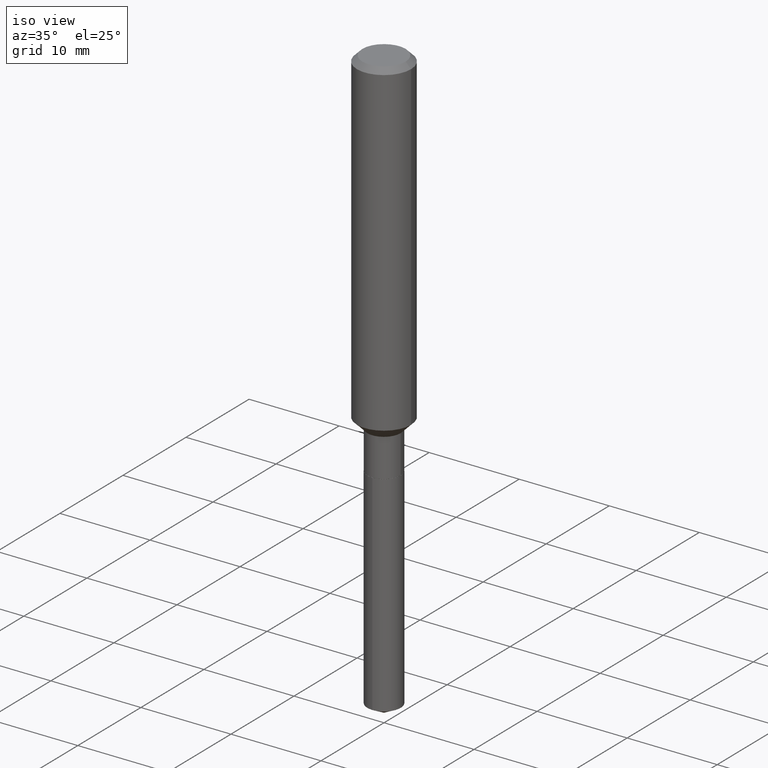
[diagram: clean part render]
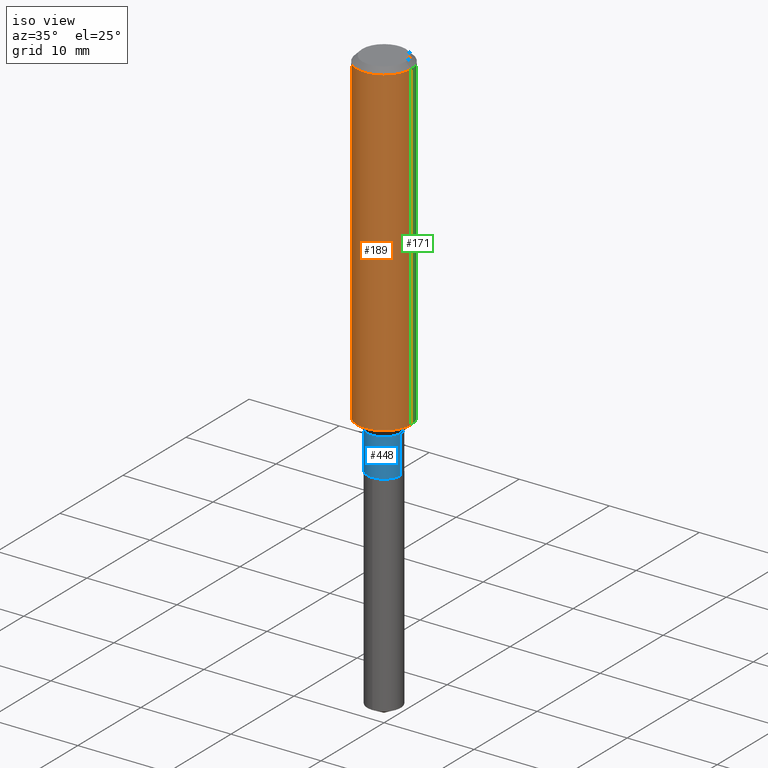
[diagram: same view with three faces highlighted in distinct colors, each labeled with its STEP entity id]
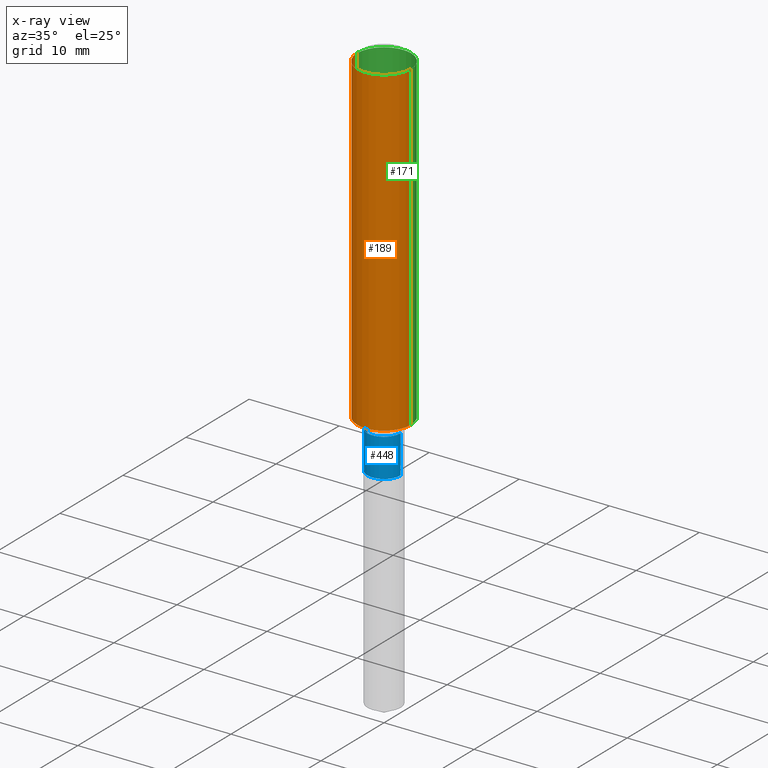
[diagram: x-ray of the same camera — body ghosted, the three highlighted faces saturated]
A machine part, iso view with three faces highlighted in distinct colors.
The next image is the same camera in x-ray (body ghosted, the three faces saturated) — at least one of them is partly hidden behind the body in this view.
Their STEP definitions:

[orange] entity #189 — the highlighted cylindrical surface (edge-blend (fillet) strip) has radius 2.9997 mm, axis along (-0, 0, 1).
#11 = VERTEX_POINT ( 'NONE', #195 ) ;
#53 = AXIS2_PLACEMENT_3D ( 'NONE', #201, #125, #163 ) ;
#57 = ORIENTED_EDGE ( 'NONE', *, *, #417, .T. ) ;
#59 = EDGE_LOOP ( 'NONE', ( #328, #57, #442, #396 ) ) ;
#64 = VECTOR ( 'NONE', #363, 39.37007874015748143 ) ;
#102 = CARTESIAN_POINT ( 'NONE',  ( 0.1181000000000000799, -8.246878922347486570E-16, 5.758764772215004644E-30 ) ) ;
#125 = DIRECTION ( 'NONE',  ( -2.445468806185136597E-29, 3.491481338843145583E-15, 1.000000000000000000 ) ) ;
#131 = VECTOR ( 'NONE', #425, 39.37007874015748143 ) ;
#133 = AXIS2_PLACEMENT_3D ( 'NONE', #434, #211, #239 ) ;
#134 = DIRECTION ( 'NONE',  ( 1.000000000000000000, -6.982962677686263555E-15, 0.000000000000000000 ) ) ;
#163 = DIRECTION ( 'NONE',  ( 1.000000000000000000, -6.982962677686266711E-15, 4.876176775795936353E-29 ) ) ;
#166 = CARTESIAN_POINT ( 'NONE',  ( -0.1180999999999999966, -1.696484979182072133E-15, -0.02362000000000014435 ) ) ;
#180 = EDGE_CURVE ( 'NONE', #446, #243, #236, .T. ) ;
#189 = ADVANCED_FACE ( 'NONE', ( #268 ), #230, .T. ) ;
#195 = CARTESIAN_POINT ( 'NONE',  ( 0.1181000000000001632, -5.813491003240776621E-15, -1.428849999999999731 ) ) ;
#201 = CARTESIAN_POINT ( 'NONE',  ( 0.000000000000000000, 0.000000000000000000, 0.000000000000000000 ) ) ;
#211 = DIRECTION ( 'NONE',  ( -2.445468806185136597E-29, 3.491481338843145583E-15, 1.000000000000000000 ) ) ;
#213 = LINE ( 'NONE', #102, #64 ) ;
#230 = CYLINDRICAL_SURFACE ( 'NONE', #53, 0.1181000000000000799 ) ;
#235 = CIRCLE ( 'NONE', #133, 0.1180999999999999966 ) ;
#236 = LINE ( 'NONE', #432, #131 ) ;
#239 = DIRECTION ( 'NONE',  ( 1.000000000000000000, -6.982962677686266711E-15, 0.000000000000000000 ) ) ;
#241 = VERTEX_POINT ( 'NONE', #310 ) ;
#243 = VERTEX_POINT ( 'NONE', #166 ) ;
#268 = FACE_OUTER_BOUND ( 'NONE', #59, .T. ) ;
#297 = AXIS2_PLACEMENT_3D ( 'NONE', #471, #356, #134 ) ;
#310 = CARTESIAN_POINT ( 'NONE',  ( 0.1180999999999999966, -9.071566814582237199E-16, -0.02362000000000014435 ) ) ;
#328 = ORIENTED_EDGE ( 'NONE', *, *, #180, .F. ) ;
#347 = CIRCLE ( 'NONE', #297, 0.1181000000000001632 ) ;
#356 = DIRECTION ( 'NONE',  ( -2.445468806185136597E-29, 3.491481338843145583E-15, 1.000000000000000000 ) ) ;
#363 = DIRECTION ( 'NONE',  ( -2.445468806185136877E-29, 3.491481338843145188E-15, 1.000000000000000000 ) ) ;
#396 = ORIENTED_EDGE ( 'NONE', *, *, #433, .F. ) ;
#399 = CARTESIAN_POINT ( 'NONE',  ( -0.1181000000000001632, -4.149652140073347794E-15, -1.428849999999999731 ) ) ;
#417 = EDGE_CURVE ( 'NONE', #446, #11, #347, .T. ) ;
#425 = DIRECTION ( 'NONE',  ( -2.445468806185136877E-29, 3.491481338843145188E-15, 1.000000000000000000 ) ) ;
#432 = CARTESIAN_POINT ( 'NONE',  ( -0.1181000000000000799, 8.391509709326788873E-16, -5.809262341591047988E-30 ) ) ;
#433 = EDGE_CURVE ( 'NONE', #243, #241, #235, .T. ) ;
#434 = CARTESIAN_POINT ( 'NONE',  ( 5.776197320209328408E-31, -8.246878922347560526E-17, -0.02362000000000014435 ) ) ;
#442 = ORIENTED_EDGE ( 'NONE', *, *, #460, .T. ) ;
#446 = VERTEX_POINT ( 'NONE', #399 ) ;
#460 = EDGE_CURVE ( 'NONE', #11, #241, #213, .T. ) ;
#471 = CARTESIAN_POINT ( 'NONE',  ( 3.494208103717631419E-29, -4.988803111006027569E-15, -1.428849999999999731 ) ) ;

[blue] entity #448 — the highlighted cylindrical surface (edge-blend (fillet) strip) has radius 1.8504 mm, axis along (-0, 0, 1).
#6 = EDGE_CURVE ( 'NONE', #28, #138, #320, .T. ) ;
#23 = AXIS2_PLACEMENT_3D ( 'NONE', #25, #279, #61 ) ;
#25 = CARTESIAN_POINT ( 'NONE',  ( 3.604865567197509213E-29, -5.146792641588679559E-15, -1.474099999999999744 ) ) ;
#28 = VERTEX_POINT ( 'NONE', #183 ) ;
#55 = CYLINDRICAL_SURFACE ( 'NONE', #470, 0.07284999999999998421 ) ;
#61 = DIRECTION ( 'NONE',  ( 1.000000000000000000, -6.982962677686267499E-15, 0.000000000000000000 ) ) ;
#83 = DIRECTION ( 'NONE',  ( -2.445468806185136877E-29, 3.491481338843145188E-15, 1.000000000000000000 ) ) ;
#105 = ORIENTED_EDGE ( 'NONE', *, *, #457, .F. ) ;
#120 = CARTESIAN_POINT ( 'NONE',  ( 0.07284999999999998421, -5.087088310694443823E-16, 3.552294781167338121E-30 ) ) ;
#122 = CARTESIAN_POINT ( 'NONE',  ( 0.07284999999999998421, -5.655501472658124631E-15, -1.474099999999999744 ) ) ;
#132 = ORIENTED_EDGE ( 'NONE', *, *, #355, .F. ) ;
#138 = VERTEX_POINT ( 'NONE', #428 ) ;
#169 = LINE ( 'NONE', #247, #193 ) ;
#172 = DIRECTION ( 'NONE',  ( 1.000000000000000000, -6.982962677686265922E-15, 4.876176775795935232E-29 ) ) ;
#173 = VERTEX_POINT ( 'NONE', #122 ) ;
#183 = CARTESIAN_POINT ( 'NONE',  ( -0.07284999999999999809, -4.920875524447791469E-15, -1.641199999999999770 ) ) ;
#187 = DIRECTION ( 'NONE',  ( -2.445468806185136597E-29, 3.491481338843145583E-15, 1.000000000000000000 ) ) ;
#193 = VECTOR ( 'NONE', #468, 39.37007874015748143 ) ;
#227 = DIRECTION ( 'NONE',  ( 1.000000000000000000, -6.982962677686267499E-15, 0.000000000000000000 ) ) ;
#245 = ORIENTED_EDGE ( 'NONE', *, *, #6, .T. ) ;
#247 = CARTESIAN_POINT ( 'NONE',  ( -0.07284999999999998421, 5.176303830012328732E-16, -3.583444213250698428E-30 ) ) ;
#265 = EDGE_CURVE ( 'NONE', #138, #173, #384, .T. ) ;
#279 = DIRECTION ( 'NONE',  ( -2.445468806185136597E-29, 3.491481338843145583E-15, 1.000000000000000000 ) ) ;
#288 = ORIENTED_EDGE ( 'NONE', *, *, #265, .T. ) ;
#320 = CIRCLE ( 'NONE', #371, 0.07284999999999998421 ) ;
#325 = EDGE_LOOP ( 'NONE', ( #132, #245, #288, #105 ) ) ;
#352 = VECTOR ( 'NONE', #83, 39.37007874015748143 ) ;
#354 = CARTESIAN_POINT ( 'NONE',  ( 0.000000000000000000, 0.000000000000000000, 0.000000000000000000 ) ) ;
#355 = EDGE_CURVE ( 'NONE', #28, #401, #169, .T. ) ;
#359 = FACE_OUTER_BOUND ( 'NONE', #325, .T. ) ;
#371 = AXIS2_PLACEMENT_3D ( 'NONE', #483, #187, #227 ) ;
#372 = CIRCLE ( 'NONE', #23, 0.07284999999999998421 ) ;
#384 = LINE ( 'NONE', #120, #352 ) ;
#401 = VERTEX_POINT ( 'NONE', #476 ) ;
#404 = DIRECTION ( 'NONE',  ( -2.445468806185136597E-29, 3.491481338843145583E-15, 1.000000000000000000 ) ) ;
#428 = CARTESIAN_POINT ( 'NONE',  ( 0.07284999999999998421, -6.238928004378813212E-15, -1.641199999999999770 ) ) ;
#448 = ADVANCED_FACE ( 'NONE', ( #359 ), #55, .T. ) ;
#457 = EDGE_CURVE ( 'NONE', #401, #173, #372, .T. ) ;
#468 = DIRECTION ( 'NONE',  ( -2.445468806185136877E-29, 3.491481338843145188E-15, 1.000000000000000000 ) ) ;
#470 = AXIS2_PLACEMENT_3D ( 'NONE', #354, #404, #172 ) ;
#476 = CARTESIAN_POINT ( 'NONE',  ( -0.07284999999999998421, -4.920875524447791469E-15, -1.474099999999999744 ) ) ;
#483 = CARTESIAN_POINT ( 'NONE',  ( 4.013503404711045218E-29, -5.730219173309368928E-15, -1.641199999999999770 ) ) ;

[green] entity #171 — the highlighted cylindrical surface (edge-blend (fillet) strip) has radius 2.9997 mm, axis along (-0, 0, 1).
#11 = VERTEX_POINT ( 'NONE', #195 ) ;
#17 = DIRECTION ( 'NONE',  ( 1.000000000000000000, -6.982962677686263555E-15, 0.000000000000000000 ) ) ;
#44 = DIRECTION ( 'NONE',  ( 1.000000000000000000, -6.982962677686266711E-15, 4.876176775795936353E-29 ) ) ;
#52 = DIRECTION ( 'NONE',  ( -2.445468806185136597E-29, 3.491481338843145583E-15, 1.000000000000000000 ) ) ;
#64 = VECTOR ( 'NONE', #363, 39.37007874015748143 ) ;
#85 = AXIS2_PLACEMENT_3D ( 'NONE', #197, #351, #44 ) ;
#86 = FACE_OUTER_BOUND ( 'NONE', #168, .T. ) ;
#95 = ORIENTED_EDGE ( 'NONE', *, *, #148, .F. ) ;
#102 = CARTESIAN_POINT ( 'NONE',  ( 0.1181000000000000799, -8.246878922347486570E-16, 5.758764772215004644E-30 ) ) ;
#131 = VECTOR ( 'NONE', #425, 39.37007874015748143 ) ;
#141 = ORIENTED_EDGE ( 'NONE', *, *, #460, .F. ) ;
#144 = AXIS2_PLACEMENT_3D ( 'NONE', #317, #52, #17 ) ;
#148 = EDGE_CURVE ( 'NONE', #241, #243, #443, .T. ) ;
#166 = CARTESIAN_POINT ( 'NONE',  ( -0.1180999999999999966, -1.696484979182072133E-15, -0.02362000000000014435 ) ) ;
#167 = CIRCLE ( 'NONE', #144, 0.1181000000000001632 ) ;
#168 = EDGE_LOOP ( 'NONE', ( #410, #455, #95, #141 ) ) ;
#171 = ADVANCED_FACE ( 'NONE', ( #86 ), #308, .T. ) ;
#180 = EDGE_CURVE ( 'NONE', #446, #243, #236, .T. ) ;
#195 = CARTESIAN_POINT ( 'NONE',  ( 0.1181000000000001632, -5.813491003240776621E-15, -1.428849999999999731 ) ) ;
#197 = CARTESIAN_POINT ( 'NONE',  ( 0.000000000000000000, 0.000000000000000000, 0.000000000000000000 ) ) ;
#203 = CARTESIAN_POINT ( 'NONE',  ( 5.776197320209328408E-31, -8.246878922347560526E-17, -0.02362000000000014435 ) ) ;
#204 = DIRECTION ( 'NONE',  ( 1.000000000000000000, -6.982962677686266711E-15, 0.000000000000000000 ) ) ;
#213 = LINE ( 'NONE', #102, #64 ) ;
#236 = LINE ( 'NONE', #432, #131 ) ;
#241 = VERTEX_POINT ( 'NONE', #310 ) ;
#243 = VERTEX_POINT ( 'NONE', #166 ) ;
#271 = DIRECTION ( 'NONE',  ( -2.445468806185136597E-29, 3.491481338843145583E-15, 1.000000000000000000 ) ) ;
#308 = CYLINDRICAL_SURFACE ( 'NONE', #85, 0.1181000000000000799 ) ;
#310 = CARTESIAN_POINT ( 'NONE',  ( 0.1180999999999999966, -9.071566814582237199E-16, -0.02362000000000014435 ) ) ;
#311 = EDGE_CURVE ( 'NONE', #11, #446, #167, .T. ) ;
#317 = CARTESIAN_POINT ( 'NONE',  ( 3.494208103717631419E-29, -4.988803111006027569E-15, -1.428849999999999731 ) ) ;
#346 = AXIS2_PLACEMENT_3D ( 'NONE', #203, #271, #204 ) ;
#351 = DIRECTION ( 'NONE',  ( -2.445468806185136597E-29, 3.491481338843145583E-15, 1.000000000000000000 ) ) ;
#363 = DIRECTION ( 'NONE',  ( -2.445468806185136877E-29, 3.491481338843145188E-15, 1.000000000000000000 ) ) ;
#399 = CARTESIAN_POINT ( 'NONE',  ( -0.1181000000000001632, -4.149652140073347794E-15, -1.428849999999999731 ) ) ;
#410 = ORIENTED_EDGE ( 'NONE', *, *, #311, .T. ) ;
#425 = DIRECTION ( 'NONE',  ( -2.445468806185136877E-29, 3.491481338843145188E-15, 1.000000000000000000 ) ) ;
#432 = CARTESIAN_POINT ( 'NONE',  ( -0.1181000000000000799, 8.391509709326788873E-16, -5.809262341591047988E-30 ) ) ;
#443 = CIRCLE ( 'NONE', #346, 0.1180999999999999966 ) ;
#446 = VERTEX_POINT ( 'NONE', #399 ) ;
#455 = ORIENTED_EDGE ( 'NONE', *, *, #180, .T. ) ;
#460 = EDGE_CURVE ( 'NONE', #11, #241, #213, .T. ) ;